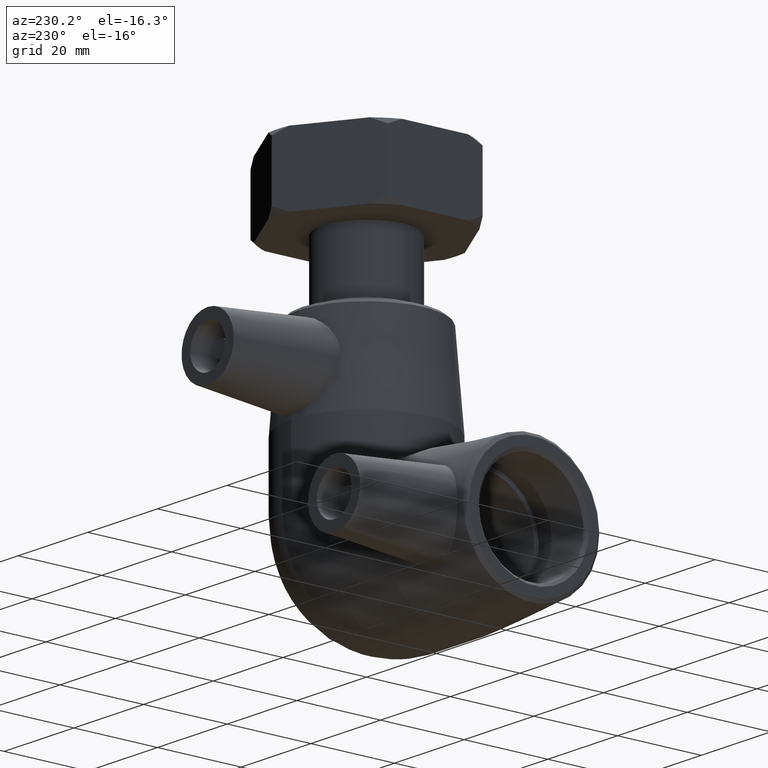
[diagram: clean part render]
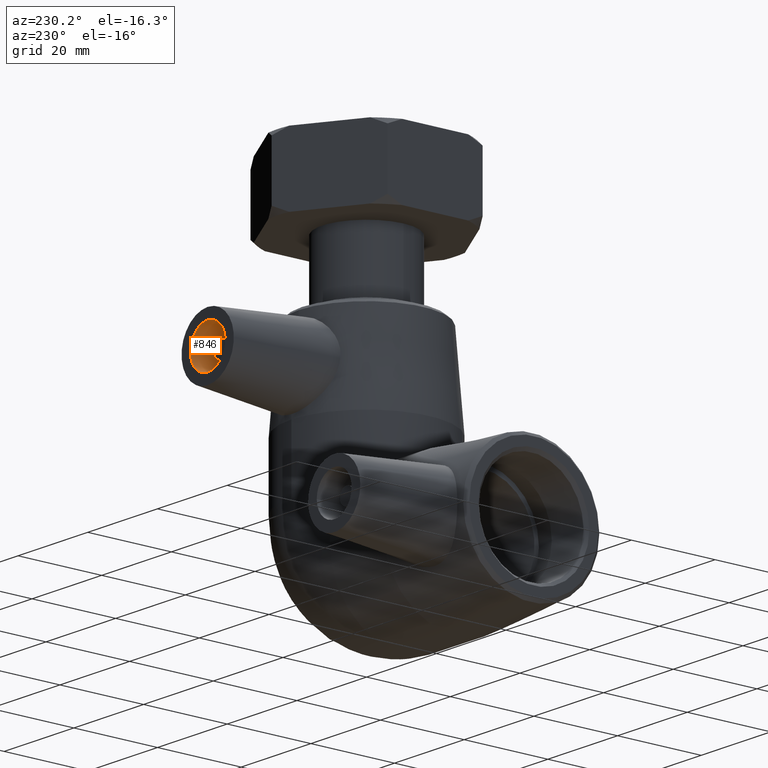
[diagram: same view with one face highlighted and labeled with its STEP entity id]
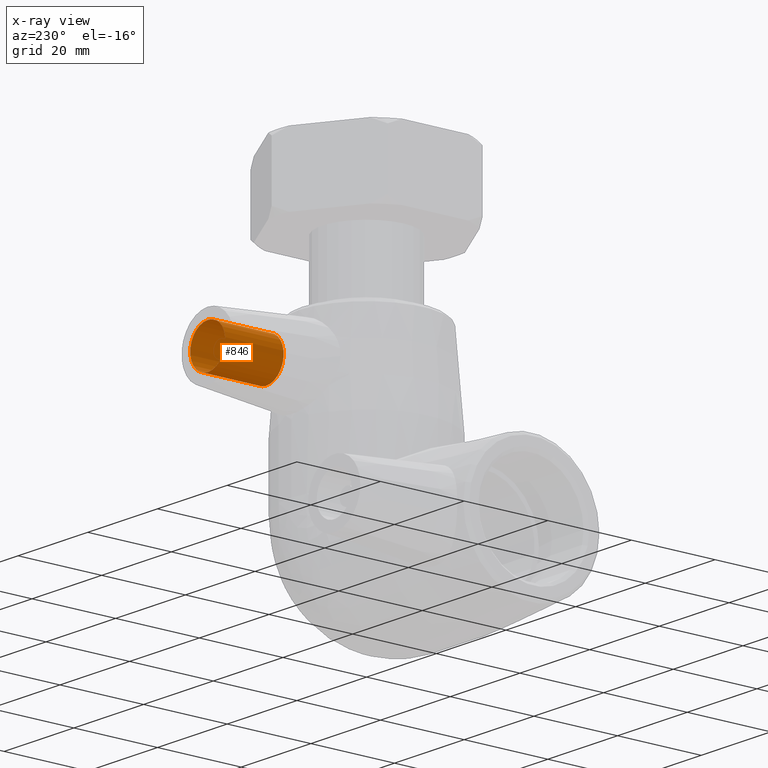
[diagram: x-ray of the same camera — body ghosted, the highlighted face saturated]
A machine part, auxiliary view. The second image highlights one B-rep face of the part: STEP entity #846.
The next image is the same camera in x-ray: the body ghosted, the highlighted face saturated — about 0% of this face is hidden behind the body in this view.
In plain terms, the highlighted cylindrical surface (bore or boss wall) has radius 5 mm, axis along (0, -1, 0).
Its self-contained STEP definition (entity closure, byte-faithful):
#94=CYLINDRICAL_SURFACE('',#959,5.);
#153=FACE_BOUND('',#309,.T.);
#215=FACE_OUTER_BOUND('',#308,.T.);
#308=EDGE_LOOP('',(#746));
#309=EDGE_LOOP('',(#747));
#380=CIRCLE('',#960,5.);
#381=CIRCLE('',#961,5.);
#460=VERTEX_POINT('',#1598);
#461=VERTEX_POINT('',#1600);
#561=EDGE_CURVE('',#460,#460,#380,.T.);
#562=EDGE_CURVE('',#461,#461,#381,.T.);
#746=ORIENTED_EDGE('',*,*,#561,.T.);
#747=ORIENTED_EDGE('',*,*,#562,.F.);
#846=ADVANCED_FACE('',(#215,#153),#94,.F.);
#959=AXIS2_PLACEMENT_3D('',#1597,#1194,#1195);
#960=AXIS2_PLACEMENT_3D('',#1599,#1196,#1197);
#961=AXIS2_PLACEMENT_3D('',#1601,#1198,#1199);
#1194=DIRECTION('center_axis',(0.,-1.,0.));
#1195=DIRECTION('ref_axis',(-6.12323399573677E-17,0.,1.));
#1196=DIRECTION('center_axis',(0.,-1.,0.));
#1197=DIRECTION('ref_axis',(-6.12323399573677E-17,0.,1.));
#1198=DIRECTION('center_axis',(0.,-1.,0.));
#1199=DIRECTION('ref_axis',(-6.12323399573677E-17,0.,1.));
#1597=CARTESIAN_POINT('Origin',(-2.22273394045245E-15,38.,36.3));
#1598=CARTESIAN_POINT('',(-2.52889564023928E-15,24.,31.3));
#1599=CARTESIAN_POINT('Origin',(-2.22273394045245E-15,24.,36.3));
#1600=CARTESIAN_POINT('',(-2.52889564023928E-15,38.,31.3));
#1601=CARTESIAN_POINT('Origin',(-2.22273394045245E-15,38.,36.3));